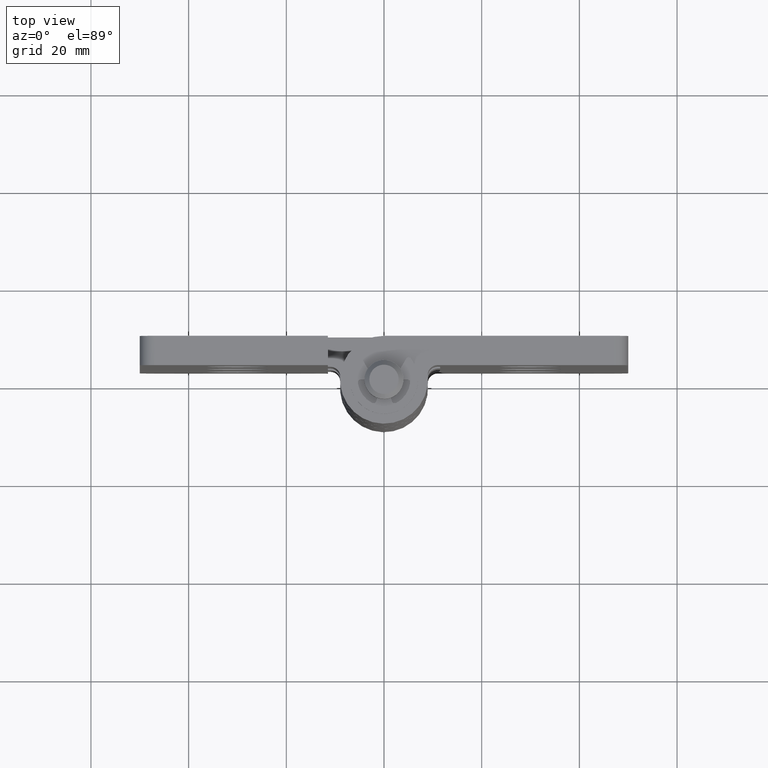
[diagram: clean part render]
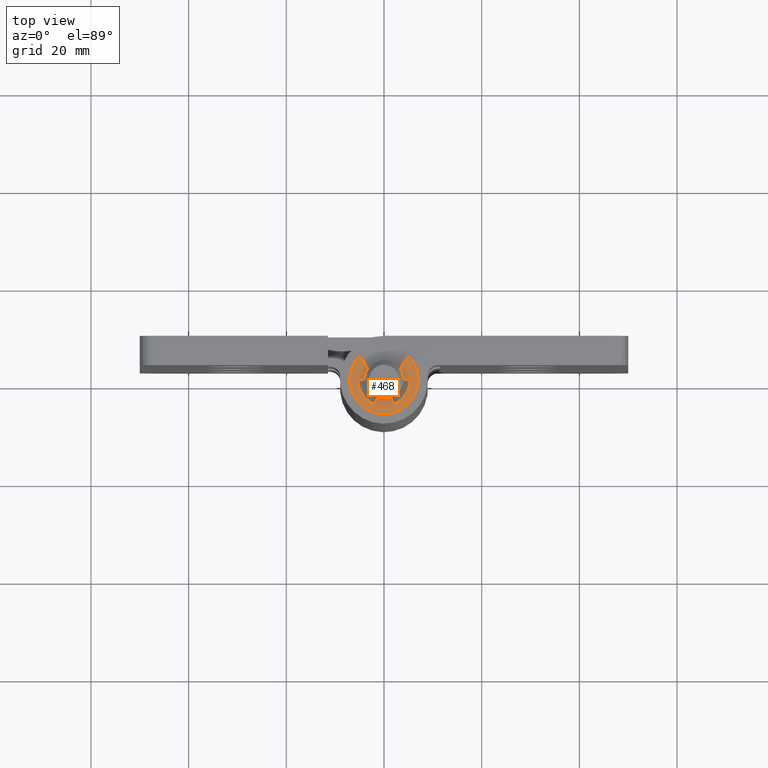
[diagram: same view with one face highlighted and labeled with its STEP entity id]
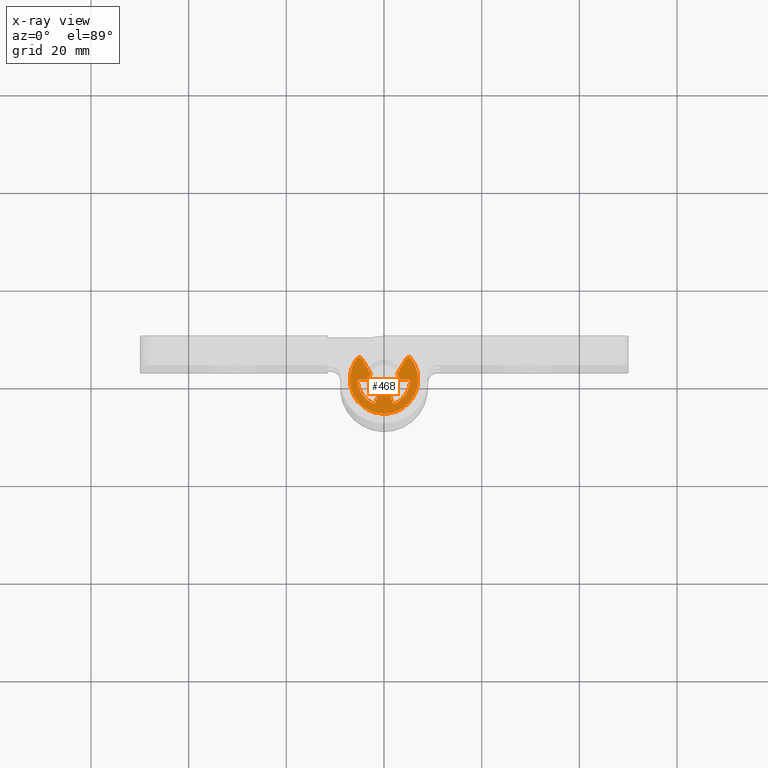
[diagram: x-ray of the same camera — body ghosted, the highlighted face saturated]
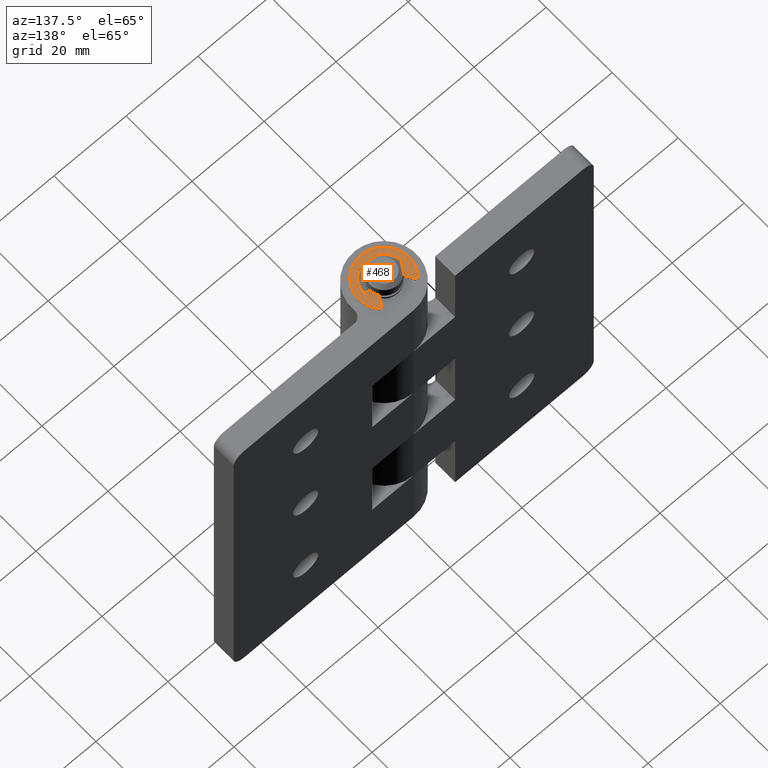
[diagram: same view with one face highlighted and labeled with its STEP entity id]
A machine part, top view. The second image highlights one B-rep face of the part: STEP entity #468.
The next image is the same camera in x-ray: the body ghosted, the highlighted face saturated — about 0% of this face is hidden behind the body in this view.
A second angle (auxiliary view) of the same face is appended — the face is thin or edge-on in the first view.
In plain terms, the highlighted face is a freeform B-spline surface patch.
Its self-contained STEP definition (entity closure, byte-faithful):
#237=CARTESIAN_POINT('',(-7.699236887391589,-7.577049594753451,101.300003051758000));
#238=CARTESIAN_POINT('',(7.699236495324890,-7.577049594753451,101.300003051758000));
#239=CARTESIAN_POINT('',(-7.699236887391589,5.129594792388666,101.300003051758000));
#240=CARTESIAN_POINT('',(7.699236495324890,5.129594792388666,101.300003051758000));
#241=B_SPLINE_SURFACE_WITH_KNOTS('',1,1,((#237,#239),(#238,#240)),.UNSPECIFIED.,.F.,.F.,.U.,(2,2),(2,2),(0.0,15.398473382716480),(0.0,12.706644387142120),.UNSPECIFIED.);
#242=CARTESIAN_POINT('',(5.505518790840720,4.323108007406220,101.300003051758000));
#243=VERTEX_POINT('',#242);
#244=CARTESIAN_POINT('',(-5.505520051458550,4.323106401997040,101.300003051758000));
#245=VERTEX_POINT('',#244);
#246=CARTESIAN_POINT('',(5.505518790840720,4.323108007406220,101.300003051758000));
#247=CARTESIAN_POINT('',(5.946445154023815,3.762161623799034,101.300003051758000));
#248=CARTESIAN_POINT('',(6.461949863102896,2.845441080413591,101.300003051758000));
#249=CARTESIAN_POINT('',(6.882580755172756,1.435555463967816,101.300003051758000));
#250=CARTESIAN_POINT('',(7.053100966282947,0.115911799133061,101.300003051758000));
#251=CARTESIAN_POINT('',(6.937118180196514,-1.234545896178237,101.300003051758000));
#252=CARTESIAN_POINT('',(6.527274057548657,-2.648126701152023,101.300003051758000));
#253=CARTESIAN_POINT('',(5.927155173063739,-3.816716004091520,101.300003051758000));
#254=CARTESIAN_POINT('',(5.039638552121197,-4.914805469417519,101.300003051757900));
#255=CARTESIAN_POINT('',(4.168188767136181,-5.660256029222915,101.300003051758000));
#256=CARTESIAN_POINT('',(3.123794177685666,-6.301141979077672,101.300003051758000));
#257=CARTESIAN_POINT('',(2.059757513644057,-6.731586369436761,101.300003051758000));
#258=CARTESIAN_POINT('',(0.817481688619491,-6.984563955162190,101.300003051758000));
#259=CARTESIAN_POINT('',(-0.511795419091048,-7.031121941031760,101.300003051758000));
#260=CARTESIAN_POINT('',(-1.786249913317590,-6.811910790901906,101.300003051758000));
#261=CARTESIAN_POINT('',(-2.953619043774083,-6.374791412008482,101.300003051758000));
#262=CARTESIAN_POINT('',(-3.793900185296550,-5.908408109791066,101.300003051758000));
#263=CARTESIAN_POINT('',(-4.660502030317525,-5.260365654993272,101.300003051758000));
#264=CARTESIAN_POINT('',(-5.420568667340632,-4.485591248822681,101.300003051758100));
#265=CARTESIAN_POINT('',(-6.044959955412458,-3.574943784137785,101.300003051757900));
#266=CARTESIAN_POINT('',(-6.517677073958693,-2.623973197263773,101.300003051758000));
#267=CARTESIAN_POINT('',(-6.813621189243693,-1.708901177293778,101.300003051758000));
#268=CARTESIAN_POINT('',(-6.998670022362126,-0.621977796712638,101.300003051758000));
#269=CARTESIAN_POINT('',(-7.018853842355886,0.380859243910619,101.300003051758000));
#270=CARTESIAN_POINT('',(-6.851318568742932,1.595083871181364,101.300003051758000));
#271=CARTESIAN_POINT('',(-6.429484642501851,2.923484634952426,101.300003051758000));
#272=CARTESIAN_POINT('',(-5.870740354637473,3.858270201963141,101.300003051758000));
#273=CARTESIAN_POINT('',(-5.505520051458550,4.323106401997040,101.300003051758000));
#274=B_SPLINE_CURVE_WITH_KNOTS('',3,(#246,#247,#248,#249,#250,#251,#252,#253,#254,#255,#256,#257,#258,#259,#260,#261,#262,#263,#264,#265,#266,#267,#268,#269,#270,#271,#272,#273),.UNSPECIFIED.,.F.,.U.,(4,1,1,1,1,1,1,1,1,1,1,1,1,1,1,1,1,1,1,1,1,1,1,1,1,4),(0.000000402428590,2.140332886983995,3.118826117109734,4.403047653874655,6.115376460511190,7.154986892939537,8.806132715557411,10.029215343402640,11.374536609623091,12.230688076799821,13.698374331330680,14.799162725884340,16.022243987350372,17.673420206269761,18.651893551258581,19.752628560564379,20.547661666191861,21.892977486544321,22.993705139144271,23.849880173886799,25.072969628148531,25.867968996159892,27.152212206774021,28.069513891947079,29.537235349458051,31.310637310273929),.UNSPECIFIED.);
#275=EDGE_CURVE('',#243,#245,#274,.T.);
#276=ORIENTED_EDGE('',*,*,#275,.F.);
#277=CARTESIAN_POINT('',(4.514002000000000,4.252556000000000,101.300003051758000));
#278=VERTEX_POINT('',#277);
#279=CARTESIAN_POINT('',(4.514002000000000,4.252556000000000,101.300003051758000));
#280=CARTESIAN_POINT('',(4.562661691251247,4.337229345904353,101.300003051758000));
#281=CARTESIAN_POINT('',(4.671960597760355,4.449999191307450,101.300003051758000));
#282=CARTESIAN_POINT('',(4.891144837893692,4.548384812733052,101.300003051758000));
#283=CARTESIAN_POINT('',(5.077834356788594,4.561690229227094,101.300003051758000));
#284=CARTESIAN_POINT('',(5.309812408247724,4.502599134418680,101.300003051758000));
#285=CARTESIAN_POINT('',(5.437894210947355,4.409768614022997,101.300003051758000));
#286=CARTESIAN_POINT('',(5.505518790840720,4.323108007406220,101.300003051758000));
#287=B_SPLINE_CURVE_WITH_KNOTS('',3,(#279,#280,#281,#282,#283,#284,#285,#286),.UNSPECIFIED.,.F.,.U.,(4,1,1,1,1,4),(0.000000488521220,0.292860147670366,0.457595046717870,0.713844566921117,0.841968630382064,1.171439125117779),.UNSPECIFIED.);
#288=EDGE_CURVE('',#278,#243,#287,.T.);
#289=ORIENTED_EDGE('',*,*,#288,.F.);
#290=CARTESIAN_POINT('',(2.750432609358520,1.197965133623384,101.300003051758000));
#291=VERTEX_POINT('',#290);
#292=CARTESIAN_POINT('',(2.750432609358520,1.197965133623384,101.300003051758000));
#293=CARTESIAN_POINT('',(4.514002000000000,4.252556000000000,101.300003051758000));
#294=QUASI_UNIFORM_CURVE('',1,(#292,#293),.UNSPECIFIED.,.F.,.U.);
#295=EDGE_CURVE('',#291,#278,#294,.T.);
#296=ORIENTED_EDGE('',*,*,#295,.F.);
#297=CARTESIAN_POINT('',(3.0,0.0,101.300003051758000));
#298=VERTEX_POINT('',#297);
#299=CARTESIAN_POINT('',(2.750432609358519,1.197965133623383,101.300003051758000));
#300=CARTESIAN_POINT('',(3.0,0.624978265986680,101.300003051757980));
#301=CARTESIAN_POINT('',(3.0,0.0,101.300003051758000));
#309=(BOUNDED_CURVE()B_SPLINE_CURVE(2,(#299,#300,#301),.UNSPECIFIED.,.F.,.U.)CURVE()GEOMETRIC_REPRESENTATION_ITEM()QUASI_UNIFORM_CURVE()RATIONAL_B_SPLINE_CURVE((1.0,0.978981835834091,1.0))REPRESENTATION_ITEM(''));
#310=EDGE_CURVE('',#291,#298,#309,.T.);
#311=ORIENTED_EDGE('',*,*,#310,.T.);
#312=CARTESIAN_POINT('',(4.762352359916260,-6.661338E-016,101.300003051758000));
#313=VERTEX_POINT('',#312);
#314=CARTESIAN_POINT('',(4.762352359916260,-6.661338E-016,101.300003051758000));
#315=CARTESIAN_POINT('',(3.0,0.0,101.300003051758000));
#316=QUASI_UNIFORM_CURVE('',1,(#314,#315),.UNSPECIFIED.,.F.,.U.);
#317=EDGE_CURVE('',#313,#298,#316,.T.);
#318=ORIENTED_EDGE('',*,*,#317,.F.);
#319=CARTESIAN_POINT('',(5.357646404905800,-0.675000000000000,101.300003051758000));
#320=VERTEX_POINT('',#319);
#321=CARTESIAN_POINT('',(4.762352359916260,-6.661338E-016,101.300003051758000));
#322=CARTESIAN_POINT('',(4.857798595083628,0.000168920646873,101.300003051758000));
#323=CARTESIAN_POINT('',(5.037807012886296,-0.043900682720783,101.300003051758000));
#324=CARTESIAN_POINT('',(5.247121334097050,-0.216172092867755,101.300003051758000));
#325=CARTESIAN_POINT('',(5.357198928832876,-0.439897314941251,101.300003051758000));
#326=CARTESIAN_POINT('',(5.366966397022090,-0.601380164146291,101.300003051758000));
#327=CARTESIAN_POINT('',(5.357646404905800,-0.675000000000000,101.300003051758000));
#328=B_SPLINE_CURVE_WITH_KNOTS('',3,(#321,#322,#323,#324,#325,#326,#327),.UNSPECIFIED.,.F.,.U.,(4,1,1,1,4),(0.000000212291608,0.286254907625426,0.540699167248440,0.795151546881978,1.017793490804736),.UNSPECIFIED.);
#329=EDGE_CURVE('',#313,#320,#328,.T.);
#330=ORIENTED_EDGE('',*,*,#329,.T.);
#331=CARTESIAN_POINT('',(2.466712896312155,-4.803678537034640,101.300003051758000));
#332=VERTEX_POINT('',#331);
#333=CARTESIAN_POINT('',(5.357646404905796,-0.675000000000000,101.300003051758000));
#334=CARTESIAN_POINT('',(5.001469252859037,-3.502068500996899,101.300003051757980));
#335=CARTESIAN_POINT('',(2.466712896312158,-4.803678537034644,101.300003051758000));
#343=(BOUNDED_CURVE()B_SPLINE_CURVE(2,(#333,#334,#335),.UNSPECIFIED.,.F.,.U.)CURVE()GEOMETRIC_REPRESENTATION_ITEM()QUASI_UNIFORM_CURVE()RATIONAL_B_SPLINE_CURVE((1.0,0.884424150743511,1.0))REPRESENTATION_ITEM(''));
#344=EDGE_CURVE('',#320,#332,#343,.T.);
#345=ORIENTED_EDGE('',*,*,#344,.T.);
#346=CARTESIAN_POINT('',(1.628819000000000,-4.475151000000000,101.300003051758000));
#347=VERTEX_POINT('',#346);
#348=CARTESIAN_POINT('',(2.466712896312155,-4.803678537034640,101.300003051758000));
#349=CARTESIAN_POINT('',(2.400726551960784,-4.837621716079947,101.300003051758000));
#350=CARTESIAN_POINT('',(2.245628004005678,-4.883658483146705,101.300003051758000));
#351=CARTESIAN_POINT('',(1.997754367680116,-4.856755731905083,101.300003051758000));
#352=CARTESIAN_POINT('',(1.764298388168564,-4.718965415976369,101.300003051758000));
#353=CARTESIAN_POINT('',(1.661291418219513,-4.564906444699531,101.300003051758000));
#354=CARTESIAN_POINT('',(1.628819000000000,-4.475151000000000,101.300003051758000));
#355=B_SPLINE_CURVE_WITH_KNOTS('',3,(#348,#349,#350,#351,#352,#353,#354),.UNSPECIFIED.,.F.,.U.,(4,1,1,1,4),(0.000000212290738,0.222641517349950,0.477093166790582,0.731536696335855,1.017790570262799),.UNSPECIFIED.);
#356=EDGE_CURVE('',#332,#347,#355,.T.);
#357=ORIENTED_EDGE('',*,*,#356,.T.);
#358=CARTESIAN_POINT('',(1.026060028740340,-2.819078008395895,101.300003051758000));
#359=VERTEX_POINT('',#358);
#360=CARTESIAN_POINT('',(1.026060028740340,-2.819078008395895,101.300003051758000));
#361=CARTESIAN_POINT('',(1.628819000000000,-4.475151000000000,101.300003051758000));
#362=QUASI_UNIFORM_CURVE('',1,(#360,#361),.UNSPECIFIED.,.F.,.U.);
#363=EDGE_CURVE('',#359,#347,#362,.T.);
#364=ORIENTED_EDGE('',*,*,#363,.F.);
#365=CARTESIAN_POINT('',(-1.026060744978756,-2.819077747706445,101.300003051758000));
#366=VERTEX_POINT('',#365);
#367=CARTESIAN_POINT('',(1.026060028740341,-2.819078008395896,101.300003051758000));
#368=CARTESIAN_POINT('',(-0.000000405560805,-3.192533299655262,101.300003051757980));
#369=CARTESIAN_POINT('',(-1.026060744978757,-2.819077747706444,101.300003051758000));
#377=(BOUNDED_CURVE()B_SPLINE_CURVE(2,(#367,#368,#369),.UNSPECIFIED.,.F.,.U.)CURVE()GEOMETRIC_REPRESENTATION_ITEM()QUASI_UNIFORM_CURVE()RATIONAL_B_SPLINE_CURVE((1.0,0.939692626017064,1.0))REPRESENTATION_ITEM(''));
#378=EDGE_CURVE('',#359,#366,#377,.T.);
#379=ORIENTED_EDGE('',*,*,#378,.T.);
#380=CARTESIAN_POINT('',(-1.628821149661500,-4.475147158666775,101.300003051758000));
#381=VERTEX_POINT('',#380);
#382=CARTESIAN_POINT('',(-1.628821149661500,-4.475147158666775,101.300003051758000));
#383=CARTESIAN_POINT('',(-1.026060744978756,-2.819077747706445,101.300003051758000));
#384=QUASI_UNIFORM_CURVE('',1,(#382,#383),.UNSPECIFIED.,.F.,.U.);
#385=EDGE_CURVE('',#381,#366,#384,.T.);
#386=ORIENTED_EDGE('',*,*,#385,.F.);
#387=CARTESIAN_POINT('',(-2.466716259072135,-4.803676810239130,101.300003051758000));
#388=VERTEX_POINT('',#387);
#389=CARTESIAN_POINT('',(-1.628821149661500,-4.475147158666775,101.300003051758000));
#390=CARTESIAN_POINT('',(-1.661306899838712,-4.564895346986265,101.300003051758000));
#391=CARTESIAN_POINT('',(-1.764284721280846,-4.718972443718944,101.300003051758000));
#392=CARTESIAN_POINT('',(-1.997759684313372,-4.856752129148635,101.300003051758000));
#393=CARTESIAN_POINT('',(-2.245634795335953,-4.883654220701395,101.300003051758000));
#394=CARTESIAN_POINT('',(-2.400726881512486,-4.837622592991326,101.300003051758000));
#395=CARTESIAN_POINT('',(-2.466716259072135,-4.803676810239130,101.300003051758000));
#396=B_SPLINE_CURVE_WITH_KNOTS('',3,(#389,#390,#391,#392,#393,#394,#395),.UNSPECIFIED.,.F.,.U.,(4,1,1,1,4),(0.000000212291398,0.286254894943940,0.540699143295676,0.795151511656168,1.017793445715850),.UNSPECIFIED.);
#397=EDGE_CURVE('',#381,#388,#396,.T.);
#398=ORIENTED_EDGE('',*,*,#397,.T.);
#399=CARTESIAN_POINT('',(-5.357646404905800,-0.675000000000000,101.300003051758000));
#400=VERTEX_POINT('',#399);
#401=CARTESIAN_POINT('',(-2.466716259072136,-4.803676810239129,101.300003051758000));
#402=CARTESIAN_POINT('',(-5.001469554906034,-3.502066103573186,101.300003051757980));
#403=CARTESIAN_POINT('',(-5.357646404905796,-0.674999999999999,101.300003051758000));
#411=(BOUNDED_CURVE()B_SPLINE_CURVE(2,(#401,#402,#403),.UNSPECIFIED.,.F.,.U.)CURVE()GEOMETRIC_REPRESENTATION_ITEM()QUASI_UNIFORM_CURVE()RATIONAL_B_SPLINE_CURVE((1.0,0.884424314091860,1.0))REPRESENTATION_ITEM(''));
#412=EDGE_CURVE('',#388,#400,#411,.T.);
#413=ORIENTED_EDGE('',*,*,#412,.T.);
#414=CARTESIAN_POINT('',(-4.762352000000000,0.0,101.300003051758000));
#415=VERTEX_POINT('',#414);
#416=CARTESIAN_POINT('',(-5.357646404905800,-0.675000000000000,101.300003051758000));
#417=CARTESIAN_POINT('',(-5.369744979761540,-0.580323375007599,101.300003051758000));
#418=CARTESIAN_POINT('',(-5.348521492712079,-0.396220236816172,101.300003051758000));
#419=CARTESIAN_POINT('',(-5.203766029836943,-0.167005037130465,101.300003051758000));
#420=CARTESIAN_POINT('',(-4.995554453282818,-0.029843830889856,101.300003051758000));
#421=CARTESIAN_POINT('',(-4.836558624829303,0.000053290111775,101.300003051758000));
#422=CARTESIAN_POINT('',(-4.762352000000000,0.0,101.300003051758000));
#423=B_SPLINE_CURVE_WITH_KNOTS('',3,(#416,#417,#418,#419,#420,#421,#422),.UNSPECIFIED.,.F.,.U.,(4,1,1,1,4),(0.000000212291951,0.286255008888182,0.540699358514615,0.795151828165787,1.017793850847162),.UNSPECIFIED.);
#424=EDGE_CURVE('',#400,#415,#423,.T.);
#425=ORIENTED_EDGE('',*,*,#424,.T.);
#426=CARTESIAN_POINT('',(-3.0,-1.699650E-015,101.300003051758000));
#427=VERTEX_POINT('',#426);
#428=CARTESIAN_POINT('',(-3.0,-1.699650E-015,101.300003051758000));
#429=CARTESIAN_POINT('',(-4.762352000000000,0.0,101.300003051758000));
#430=QUASI_UNIFORM_CURVE('',1,(#428,#429),.UNSPECIFIED.,.F.,.U.);
#431=EDGE_CURVE('',#427,#415,#430,.T.);
#432=ORIENTED_EDGE('',*,*,#431,.F.);
#433=CARTESIAN_POINT('',(-2.750434582886215,1.197960602550660,101.300003051758000));
#434=VERTEX_POINT('',#433);
#435=CARTESIAN_POINT('',(-3.0,0.0,101.300003051758000));
#436=CARTESIAN_POINT('',(-3.000000000000000,0.624975687637188,101.300003051757980));
#437=CARTESIAN_POINT('',(-2.750434582886214,1.197960602550659,101.300003051758000));
#445=(BOUNDED_CURVE()B_SPLINE_CURVE(2,(#435,#436,#437),.UNSPECIFIED.,.F.,.U.)CURVE()GEOMETRIC_REPRESENTATION_ITEM()QUASI_UNIFORM_CURVE()RATIONAL_B_SPLINE_CURVE((1.0,0.978982003825591,1.0))REPRESENTATION_ITEM(''));
#446=EDGE_CURVE('',#427,#434,#445,.T.);
#447=ORIENTED_EDGE('',*,*,#446,.T.);
#448=CARTESIAN_POINT('',(-4.514002938909851,4.252554162135815,101.300003051758000));
#449=VERTEX_POINT('',#448);
#450=CARTESIAN_POINT('',(-4.514002938909851,4.252554162135815,101.300003051758000));
#451=CARTESIAN_POINT('',(-2.750434582886215,1.197960602550660,101.300003051758000));
#452=QUASI_UNIFORM_CURVE('',1,(#450,#451),.UNSPECIFIED.,.F.,.U.);
#453=EDGE_CURVE('',#449,#434,#452,.T.);
#454=ORIENTED_EDGE('',*,*,#453,.F.);
#455=CARTESIAN_POINT('',(-5.505520051458550,4.323106401997040,101.300003051758000));
#456=CARTESIAN_POINT('',(-5.445362388617839,4.400044216701822,101.300003051758000));
#457=CARTESIAN_POINT('',(-5.321191419502548,4.496188086843290,101.300003051758000));
#458=CARTESIAN_POINT('',(-5.108081164415711,4.557383664058256,101.300003051758000));
#459=CARTESIAN_POINT('',(-4.891544720429162,4.552044913134764,101.300003051758000));
#460=CARTESIAN_POINT('',(-4.668777695582989,4.452054474110808,101.300003051758000));
#461=CARTESIAN_POINT('',(-4.553599329746938,4.321269606946691,101.300003051758000));
#462=CARTESIAN_POINT('',(-4.514002938909851,4.252554162135815,101.300003051758000));
#463=B_SPLINE_CURVE_WITH_KNOTS('',3,(#455,#456,#457,#458,#459,#460,#461,#462),.UNSPECIFIED.,.F.,.U.,(4,1,1,1,1,4),(0.000000488523370,0.292860298256917,0.457595282018978,0.658901255158732,0.933500263292333,1.171439727457927),.UNSPECIFIED.);
#464=EDGE_CURVE('',#245,#449,#463,.T.);
#465=ORIENTED_EDGE('',*,*,#464,.F.);
#466=EDGE_LOOP('',(#276,#289,#296,#311,#318,#330,#345,#357,#364,#379,#386,#398,#413,#425,#432,#447,#454,#465));
#467=FACE_OUTER_BOUND('',#466,.T.);
#468=ADVANCED_FACE('',(#467),#241,.T.);